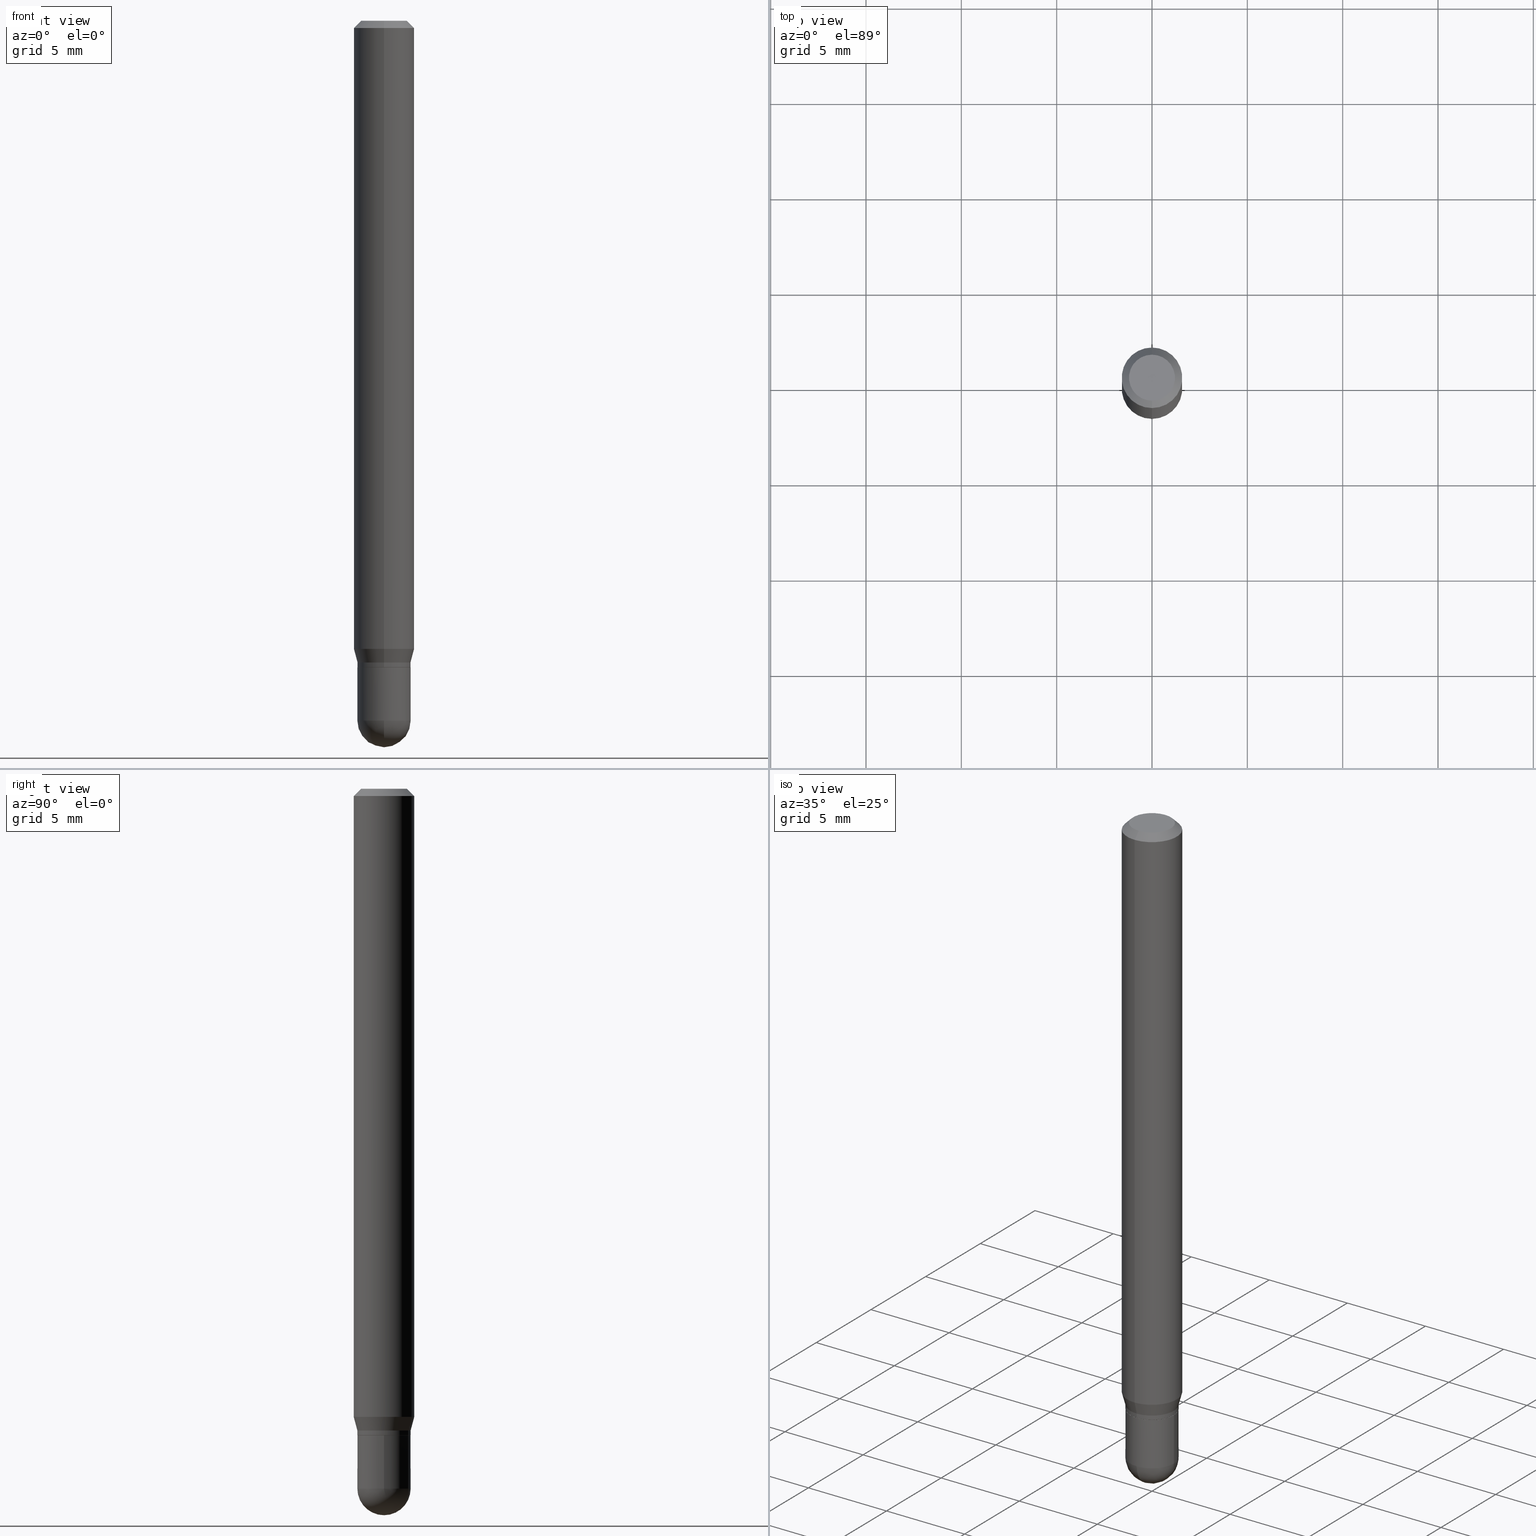
[diagram: canonical four-view strip — front | top / right | iso, engineering-drawing reading convention]
A machine part, canonical four-view strip (front | top / right | iso — engineering-drawing reading convention). The complete STEP part file that produces these views, byte-faithful:
ISO-10303-21;
HEADER;
FILE_DESCRIPTION (( 'STEP AP203' ),
    '1' );
FILE_NAME ('04385.STEP',
    '2024-03-08T19:03:46',
    ( '' ),
    ( '' ),
    'SwSTEP 2.0',
    'SolidWorks 2023',
    '' );
FILE_SCHEMA (( 'CONFIG_CONTROL_DESIGN' ));
ENDSEC;

DATA;
#1 = DIRECTION ( 'NONE',  ( 1.000000000000000000, -6.982962677686266711E-15, 4.876176775795935793E-29 ) ) ;
#2 = CIRCLE ( 'NONE', #295, 0.05500000000000000028 ) ;
#3 = AXIS2_PLACEMENT_3D ( 'NONE', #433, #318, #411 ) ;
#4 = CC_DESIGN_SECURITY_CLASSIFICATION ( #402, ( #281 ) ) ;
#5 = PRODUCT ( '04385', '04385', '', ( #43 ) ) ;
#6 = ADVANCED_FACE ( 'NONE', ( #495 ), #93, .T. ) ;
#7 = PERSON_AND_ORGANIZATION ( #385, #209 ) ;
#8 = DIMENSIONAL_EXPONENTS ( 1.000000000000000000, 0.000000000000000000, 0.000000000000000000, 0.000000000000000000, 0.000000000000000000, 0.000000000000000000, 0.000000000000000000 ) ;
#9 = CALENDAR_DATE ( 2024, 8, 3 ) ;
#10 = ORIENTED_EDGE ( 'NONE', *, *, #110, .T. ) ;
#11 = CC_DESIGN_PERSON_AND_ORGANIZATION_ASSIGNMENT ( #7, #279, ( #94 ) ) ;
#12 = DATE_TIME_ROLE ( 'creation_date' ) ;
#13 = VERTEX_POINT ( 'NONE', #342 ) ;
#14 = ORIENTED_EDGE ( 'NONE', *, *, #130, .T. ) ;
#15 = VERTEX_POINT ( 'NONE', #66 ) ;
#16 = APPROVAL_DATE_TIME ( #251, #335 ) ;
#17 = EDGE_LOOP ( 'NONE', ( #162, #25, #46, #245 ) ) ;
#18 = CIRCLE ( 'NONE', #486, 0.06250000000000000000 ) ;
#19 = EDGE_LOOP ( 'NONE', ( #160, #363, #104, #202 ) ) ;
#20 = EDGE_CURVE ( 'NONE', #286, #442, #2, .T. ) ;
#21 = VECTOR ( 'NONE', #205, 39.37007874015748143 ) ;
#22 = EDGE_CURVE ( 'NONE', #15, #128, #217, .T. ) ;
#23 = ORIENTED_EDGE ( 'NONE', *, *, #212, .F. ) ;
#24 = FACE_OUTER_BOUND ( 'NONE', #435, .T. ) ;
#25 = ORIENTED_EDGE ( 'NONE', *, *, #453, .T. ) ;
#26 = MANIFOLD_SOLID_BREP ( 'Body-Move/Copy2[1]', #311 ) ;
#27 = DIRECTION ( 'NONE',  ( -6.982962677686265922E-15, -1.000000000000000000, 5.012565125989473962E-15 ) ) ;
#28 = ORIENTED_EDGE ( 'NONE', *, *, #399, .T. ) ;
#29 = CIRCLE ( 'NONE', #340, 0.05500000000000020151 ) ;
#30 = LOCAL_TIME ( 14, 3, 46.00000000000000000, #358 ) ;
#31 = PLANE ( 'NONE',  #235 ) ;
#32 = EDGE_CURVE ( 'NONE', #262, #215, #29, .T. ) ;
#33 = ORIENTED_EDGE ( 'NONE', *, *, #190, .F. ) ;
#34 = CARTESIAN_POINT ( 'NONE',  ( 0.05500000000000000028, -3.840629472727446888E-16, 2.681897226687764826E-30 ) ) ;
#35 = DIRECTION ( 'NONE',  ( -2.445595275774768217E-29, 3.491300227192590875E-15, 1.000000000000000000 ) ) ;
#36 = CARTESIAN_POINT ( 'NONE',  ( -0.05500000000000000028, -4.462360556323917743E-15, -1.445000000000000062 ) ) ;
#37 = DIRECTION ( 'NONE',  ( -6.982962677686266711E-15, -1.000000000000000000, 3.491300227192590875E-15 ) ) ;
#38 = AXIS2_PLACEMENT_3D ( 'NONE', #421, #425, #305 ) ;
#39 = AXIS2_PLACEMENT_3D ( 'NONE', #418, #345, #68 ) ;
#40 = ADVANCED_FACE ( 'NONE', ( #451 ), #419, .T. ) ;
#41 = DIRECTION ( 'NONE',  ( -6.982962677686265922E-15, -1.000000000000000000, 3.483106191921935554E-15 ) ) ;
#42 = DATE_TIME_ROLE ( 'classification_date' ) ;
#43 = MECHANICAL_CONTEXT ( 'NONE', #294, 'mechanical' ) ;
#44 = DIRECTION ( 'NONE',  ( -6.982962677686265922E-15, -1.000000000000000000, 4.370956789862821150E-15 ) ) ;
#45 =( LENGTH_UNIT ( ) NAMED_UNIT ( * ) SI_UNIT ( $, .METRE. ) );
#46 = ORIENTED_EDGE ( 'NONE', *, *, #420, .F. ) ;
#47 = ORIENTED_EDGE ( 'NONE', *, *, #429, .F. ) ;
#48 = VERTEX_POINT ( 'NONE', #255 ) ;
#49 = APPROVAL ( #431, 'UNSPECIFIED' ) ;
#50 = VECTOR ( 'NONE', #249, 39.37007874015748143 ) ;
#51 = ORIENTED_EDGE ( 'NONE', *, *, #259, .T. ) ;
#52 = LINE ( 'NONE', #201, #50 ) ;
#53 = EDGE_LOOP ( 'NONE', ( #408, #439, #338, #135 ) ) ;
#54 = CARTESIAN_POINT ( 'NONE',  ( 3.907985046680888280E-16, 0.05499999999999557326, -1.325000000000000400 ) ) ;
#55 = CARTESIAN_POINT ( 'NONE',  ( 1.602081019360384933E-45, -2.287110169977683419E-31, -6.550883685579755119E-17 ) ) ;
#56 = EDGE_CURVE ( 'NONE', #241, #252, #207, .T. ) ;
#57 = AXIS2_PLACEMENT_3D ( 'NONE', #386, #303, #44 ) ;
#58 = ORIENTED_EDGE ( 'NONE', *, *, #429, .T. ) ;
#59 = LINE ( 'NONE', #372, #348 ) ;
#60 = DIRECTION ( 'NONE',  ( 1.000000000000000000, -6.982962677686266711E-15, 4.883557194083112340E-29 ) ) ;
#61 = CARTESIAN_POINT ( 'NONE',  ( 3.263646895521428124E-29, -4.659140153188512853E-15, -1.334500000000000242 ) ) ;
#62 = DIRECTION ( 'NONE',  ( -2.445595275774768217E-29, 3.491300227192590875E-15, 1.000000000000000000 ) ) ;
#63 = DIRECTION ( 'NONE',  ( -2.445468806185136877E-29, 3.491481338843145188E-15, 1.000000000000000000 ) ) ;
#64 = ORIENTED_EDGE ( 'NONE', *, *, #153, .T. ) ;
#65 = FACE_OUTER_BOUND ( 'NONE', #19, .T. ) ;
#66 = CARTESIAN_POINT ( 'NONE',  ( 3.840629472727447874E-16, 0.04749999999999999362, -2.313455976474456035E-16 ) ) ;
#67 = AXIS2_PLACEMENT_3D ( 'NONE', #288, #396, #333 ) ;
#68 = DIRECTION ( 'NONE',  ( -6.982962677686265922E-15, -1.000000000000000000, 4.966996352116824143E-15 ) ) ;
#69 = DIRECTION ( 'NONE',  ( -2.445595275774768217E-29, 3.491300227192590875E-15, 1.000000000000000000 ) ) ;
#70 = DIRECTION ( 'NONE',  ( -2.445595275774768217E-29, 3.491300227192590875E-15, 1.000000000000000000 ) ) ;
#71 = DIRECTION ( 'NONE',  ( -6.982962677686265922E-15, -1.000000000000000000, 4.966996352116824143E-15 ) ) ;
#72 = EDGE_CURVE ( 'NONE', #128, #15, #297, .T. ) ;
#73 = DIRECTION ( 'NONE',  ( -2.445595275774768217E-29, 3.491300227192590875E-15, 1.000000000000000000 ) ) ;
#74 = DIRECTION ( 'NONE',  ( -6.982962677686265922E-15, -1.000000000000000000, 3.491300227192590875E-15 ) ) ;
#75 = EDGE_CURVE ( 'NONE', #362, #166, #18, .T. ) ;
#76 = CARTESIAN_POINT ( 'NONE',  ( 4.440892098500945650E-16, 0.06249999999999995143, -0.01500000000000028394 ) ) ;
#77 = CALENDAR_DATE ( 2024, 8, 3 ) ;
#78 = CC_DESIGN_DATE_AND_TIME_ASSIGNMENT ( #194, #12, ( #94 ) ) ;
#79 = CARTESIAN_POINT ( 'NONE',  ( 3.668392913662168686E-31, -5.236950340788909313E-17, -0.01500000000000006710 ) ) ;
#80 = AXIS2_PLACEMENT_3D ( 'NONE', #422, #173, #27 ) ;
#81 = AXIS2_PLACEMENT_3D ( 'NONE', #79, #227, #119 ) ;
#82 = APPROVAL_DATE_TIME ( #438, #306 ) ;
#83 = ORIENTED_EDGE ( 'NONE', *, *, #399, .F. ) ;
#84 = DATE_AND_TIME ( #440, #480 ) ;
#85 = VERTEX_POINT ( 'NONE', #346 ) ;
#86 = ORIENTED_EDGE ( 'NONE', *, *, #20, .T. ) ;
#87 = LINE ( 'NONE', #246, #389 ) ;
#88 = CLOSED_SHELL ( 'NONE', ( #492, #40, #500, #6, #185, #367, #109, #291, #376, #331, #325, #174 ) ) ;
#89 = VECTOR ( 'NONE', #266, 39.37007874015748143 ) ;
#90 = CIRCLE ( 'NONE', #394, 0.05500000000000020151 ) ;
#91 = EDGE_LOOP ( 'NONE', ( #14, #172 ) ) ;
#92 = SPHERICAL_SURFACE ( 'NONE', #169, 0.05500000000000005579 ) ;
#93 = CYLINDRICAL_SURFACE ( 'NONE', #496, 0.06250000000000000000 ) ;
#94 = PRODUCT_DEFINITION ( 'UNKNOWN', '', #281, #432 ) ;
#95 = CARTESIAN_POINT ( 'NONE',  ( 0.000000000000000000, 0.000000000000000000, 0.000000000000000000 ) ) ;
#96 = CARTESIAN_POINT ( 'NONE',  ( 3.907985046680564354E-16, 0.05500000000000020151, -1.920215124955931874E-16 ) ) ;
#97 = AXIS2_PLACEMENT_3D ( 'NONE', #134, #447, #290 ) ;
#98 = COORDINATED_UNIVERSAL_TIME_OFFSET ( 5, 0, .BEHIND. ) ;
#99 =( GEOMETRIC_REPRESENTATION_CONTEXT ( 3 ) GLOBAL_UNCERTAINTY_ASSIGNED_CONTEXT ( ( #231 ) ) GLOBAL_UNIT_ASSIGNED_CONTEXT ( ( #512, #152, #232 ) ) REPRESENTATION_CONTEXT ( 'NONE', 'WORKASPACE' ) );
#100 = DIRECTION ( 'NONE',  ( 1.000000000000000000, -6.982962677686262766E-15, 0.000000000000000000 ) ) ;
#101 = DIRECTION ( 'NONE',  ( -1.000000000000000000, 6.982962677686265922E-15, -4.876176775795935793E-29 ) ) ;
#102 = ORIENTED_EDGE ( 'NONE', *, *, #75, .F. ) ;
#103 = LINE ( 'NONE', #302, #179 ) ;
#104 = ORIENTED_EDGE ( 'NONE', *, *, #443, .T. ) ;
#105 = DIRECTION ( 'NONE',  ( -6.982962677686265922E-15, -1.000000000000000000, 4.966996352116824143E-15 ) ) ;
#106 = LINE ( 'NONE', #350, #89 ) ;
#107 = FACE_OUTER_BOUND ( 'NONE', #197, .T. ) ;
#108 = CARTESIAN_POINT ( 'NONE',  ( -4.364351673553912750E-16, -0.06250000000000005551, -0.01499999999999984852 ) ) ;
#109 = ADVANCED_FACE ( 'NONE', ( #223 ), #390, .T. ) ;
#110 = EDGE_CURVE ( 'NONE', #166, #362, #347, .T. ) ;
#111 = CARTESIAN_POINT ( 'NONE',  ( 0.000000000000000000, 0.000000000000000000, 0.000000000000000000 ) ) ;
#112 = DIRECTION ( 'NONE',  ( -2.445468806185136597E-29, 3.491481338843145583E-15, 1.000000000000000000 ) ) ;
#113 = DIRECTION ( 'NONE',  ( -2.445468806185136597E-29, 3.491481338843145583E-15, 1.000000000000000000 ) ) ;
#114 = COORDINATED_UNIVERSAL_TIME_OFFSET ( 5, 0, .BEHIND. ) ;
#115 = CIRCLE ( 'NONE', #234, 0.05500000000000000028 ) ;
#116 = APPROVAL_PERSON_ORGANIZATION ( #326, #335, #370 ) ;
#117 = DIRECTION ( 'NONE',  ( 1.000000000000000000, -6.982962677686262766E-15, 0.000000000000000000 ) ) ;
#118 = APPLICATION_PROTOCOL_DEFINITION ( 'international standard', 'config_control_design', 1994, #294 ) ;
#119 = DIRECTION ( 'NONE',  ( 6.982962677686265922E-15, 1.000000000000000000, -3.483106191921935554E-15 ) ) ;
#120 = CARTESIAN_POINT ( 'NONE',  ( 4.174438572590915733E-16, 0.05499999999999557326, -1.325000000000000400 ) ) ;
#121 = COORDINATED_UNIVERSAL_TIME_OFFSET ( 5, 0, .BEHIND. ) ;
#122 = ORIENTED_EDGE ( 'NONE', *, *, #259, .F. ) ;
#123 = CIRCLE ( 'NONE', #218, 0.05500000000000000028 ) ;
#124 = EDGE_CURVE ( 'NONE', #252, #215, #191, .T. ) ;
#125 = EDGE_CURVE ( 'NONE', #442, #13, #115, .T. ) ;
#126 = PERSON_AND_ORGANIZATION ( #385, #209 ) ;
#127 = ORIENTED_EDGE ( 'NONE', *, *, #307, .F. ) ;
#128 = VERTEX_POINT ( 'NONE', #228 ) ;
#129 = EDGE_LOOP ( 'NONE', ( #122, #175, #280, #490 ) ) ;
#130 = EDGE_CURVE ( 'NONE', #182, #417, #132, .T. ) ;
#131 = FACE_OUTER_BOUND ( 'NONE', #327, .T. ) ;
#132 = CIRCLE ( 'NONE', #400, 0.05500000000000000028 ) ;
#133 = ORIENTED_EDGE ( 'NONE', *, *, #332, .F. ) ;
#134 = CARTESIAN_POINT ( 'NONE',  ( 3.668392913662168686E-31, -5.236950340788909313E-17, -0.01500000000000006710 ) ) ;
#135 = ORIENTED_EDGE ( 'NONE', *, *, #32, .F. ) ;
#136 = CALENDAR_DATE ( 2024, 8, 3 ) ;
#137 = DIRECTION ( 'NONE',  ( -6.982962677686265922E-15, -1.000000000000000000, 4.966996352116824143E-15 ) ) ;
#138 = DIRECTION ( 'NONE',  ( 6.982962677686265922E-15, 1.000000000000000000, -3.491300227192590875E-15 ) ) ;
#139 = AXIS2_PLACEMENT_3D ( 'NONE', #382, #505, #74 ) ;
#140 = ORIENTED_EDGE ( 'NONE', *, *, #230, .F. ) ;
#141 = DIRECTION ( 'NONE',  ( -2.445595275774768217E-29, 3.491300227192590875E-15, 1.000000000000000000 ) ) ;
#142 = DIRECTION ( 'NONE',  ( -2.445595275774767937E-29, 3.491300227192590875E-15, 1.000000000000000000 ) ) ;
#143 = DIRECTION ( 'NONE',  ( -6.982962677686265922E-15, -1.000000000000000000, 4.966996352116824143E-15 ) ) ;
#144 = DIRECTION ( 'NONE',  ( 1.000000000000000000, -6.982962677686262766E-15, 0.000000000000000000 ) ) ;
#145 = FACE_OUTER_BOUND ( 'NONE', #503, .T. ) ;
#146 = EDGE_CURVE ( 'NONE', #252, #241, #427, .T. ) ;
#147 = CARTESIAN_POINT ( 'NONE',  ( -0.05500000000000000028, -4.462360556323917743E-15, -1.335000000000000187 ) ) ;
#148 = DIRECTION ( 'NONE',  ( -2.445468806185136597E-29, 3.491481338843145583E-15, 1.000000000000000000 ) ) ;
#149 = CARTESIAN_POINT ( 'NONE',  ( 3.264700856257157760E-29, -4.661127587355599122E-15, -1.335000000000000187 ) ) ;
#150 = CARTESIAN_POINT ( 'NONE',  ( 0.05500000000000000028, -5.045190534628344107E-15, -1.335000000000000187 ) ) ;
#151 = CARTESIAN_POINT ( 'NONE',  ( -3.840629472727460200E-16, -0.05500000000000020151, 1.920215124955931874E-16 ) ) ;
#152 =( NAMED_UNIT ( * ) PLANE_ANGLE_UNIT ( ) SI_UNIT ( $, .RADIAN. ) );
#153 = EDGE_CURVE ( 'NONE', #13, #330, #198, .T. ) ;
#154 = VECTOR ( 'NONE', #424, 39.37007874015748143 ) ;
#155 = CC_DESIGN_APPROVAL ( #49, ( #94 ) ) ;
#156 = APPROVAL_STATUS ( 'not_yet_approved' ) ;
#157 = APPROVAL_ROLE ( '' ) ;
#158 = ORIENTED_EDGE ( 'NONE', *, *, #365, .T. ) ;
#159 = PERSON_AND_ORGANIZATION_ROLE ( 'design_supplier' ) ;
#160 = ORIENTED_EDGE ( 'NONE', *, *, #365, .F. ) ;
#161 = AXIS2_PLACEMENT_3D ( 'NONE', #384, #502, #144 ) ;
#162 = ORIENTED_EDGE ( 'NONE', *, *, #146, .T. ) ;
#163 = EDGE_CURVE ( 'NONE', #478, #368, #187, .T. ) ;
#164 = ORIENTED_EDGE ( 'NONE', *, *, #443, .F. ) ;
#165 = ADVANCED_FACE ( 'NONE', ( #188 ), #430, .T. ) ;
#166 = VERTEX_POINT ( 'NONE', #76 ) ;
#167 = DIRECTION ( 'NONE',  ( -4.937700262164674260E-15, -0.7071067811865632269, 0.7071067811865319186 ) ) ;
#168 = CARTESIAN_POINT ( 'NONE',  ( -3.840629472727128385E-16, -0.05500000000000477424, -1.334500000000000020 ) ) ;
#169 = AXIS2_PLACEMENT_3D ( 'NONE', #329, #60, #277 ) ;
#170 = AXIS2_PLACEMENT_3D ( 'NONE', #214, #339, #304 ) ;
#171 = EDGE_LOOP ( 'NONE', ( #127, #195, #28, #133 ) ) ;
#172 = ORIENTED_EDGE ( 'NONE', *, *, #212, .T. ) ;
#173 = DIRECTION ( 'NONE',  ( -2.445595275774768217E-29, 3.491300227192590875E-15, 1.000000000000000000 ) ) ;
#174 = ADVANCED_FACE ( 'NONE', ( #270 ), #271, .T. ) ;
#175 = ORIENTED_EDGE ( 'NONE', *, *, #261, .T. ) ;
#176 = CARTESIAN_POINT ( 'NONE',  ( 0.000000000000000000, 0.000000000000000000, 0.000000000000000000 ) ) ;
#177 = FACE_OUTER_BOUND ( 'NONE', #171, .T. ) ;
#178 = AXIS2_PLACEMENT_3D ( 'NONE', #354, #221, #117 ) ;
#179 = VECTOR ( 'NONE', #413, 39.37007874015748143 ) ;
#180 = DIRECTION ( 'NONE',  ( -2.445468806185136597E-29, 3.491481338843145583E-15, 1.000000000000000000 ) ) ;
#181 = CARTESIAN_POINT ( 'NONE',  ( 0.05500000000000000028, -5.237222008264716599E-15, -1.445000000000000062 ) ) ;
#182 = VERTEX_POINT ( 'NONE', #150 ) ;
#183 = DIRECTION ( 'NONE',  ( 1.000000000000000000, -6.982962677686266711E-15, 4.876176775795935793E-29 ) ) ;
#184 = DIRECTION ( 'NONE',  ( -6.982962677686265922E-15, -1.000000000000000000, 4.966996352116824143E-15 ) ) ;
#185 = ADVANCED_FACE ( 'NONE', ( #145 ), #497, .T. ) ;
#186 = DIRECTION ( 'NONE',  ( -2.445595275774768217E-29, 3.491300227192590875E-15, 1.000000000000000000 ) ) ;
#187 = CIRCLE ( 'NONE', #471, 0.05449999999999999983 ) ;
#188 = FACE_OUTER_BOUND ( 'NONE', #457, .T. ) ;
#189 = LENGTH_MEASURE_WITH_UNIT ( LENGTH_MEASURE( 0.02539999999999999897 ), #45 );
#190 = EDGE_CURVE ( 'NONE', #344, #85, #506, .T. ) ;
#191 = LINE ( 'NONE', #151, #154 ) ;
#192 = PERSON_AND_ORGANIZATION ( #385, #209 ) ;
#193 = DIRECTION ( 'NONE',  ( 1.000000000000000000, -6.982962677686262766E-15, 0.000000000000000000 ) ) ;
#194 = DATE_AND_TIME ( #9, #30 ) ;
#195 = ORIENTED_EDGE ( 'NONE', *, *, #32, .T. ) ;
#196 = ORIENTED_EDGE ( 'NONE', *, *, #72, .T. ) ;
#197 = EDGE_LOOP ( 'NONE', ( #484, #441, #482, #377 ) ) ;
#198 = CIRCLE ( 'NONE', #178, 0.05500000000000000028 ) ;
#199 = ORIENTED_EDGE ( 'NONE', *, *, #470, .F. ) ;
#200 = CARTESIAN_POINT ( 'NONE',  ( 4.364351673553919652E-16, 0.06249999999999995143, -0.01500000000000028394 ) ) ;
#201 = CARTESIAN_POINT ( 'NONE',  ( -0.05500000000000000028, 3.907985046680551042E-16, -2.705414299640198362E-30 ) ) ;
#202 = ORIENTED_EDGE ( 'NONE', *, *, #56, .F. ) ;
#203 = DIRECTION ( 'NONE',  ( 1.839019923739599526E-15, 0.2588190451025248473, 0.9659258262890670910 ) ) ;
#204 = ORIENTED_EDGE ( 'NONE', *, *, #317, .T. ) ;
#205 = DIRECTION ( 'NONE',  ( 4.937700262164548042E-15, 0.7071067811865451302, -0.7071067811865499042 ) ) ;
#206 = FACE_OUTER_BOUND ( 'NONE', #395, .T. ) ;
#207 = CIRCLE ( 'NONE', #436, 0.05500000000000020151 ) ;
#208 = AXIS2_PLACEMENT_3D ( 'NONE', #111, #148, #1 ) ;
#209 = ORGANIZATION ( 'UNSPECIFIED', 'UNSPECIFIED', '' ) ;
#210 = ORIENTED_EDGE ( 'NONE', *, *, #22, .F. ) ;
#211 = CC_DESIGN_PERSON_AND_ORGANIZATION_ASSIGNMENT ( #238, #159, ( #281 ) ) ;
#212 = EDGE_CURVE ( 'NONE', #417, #182, #123, .T. ) ;
#213 = ORIENTED_EDGE ( 'NONE', *, *, #190, .T. ) ;
#214 = CARTESIAN_POINT ( 'NONE',  ( 3.264869693159317002E-29, -4.660885803302110079E-15, -1.335000000000000409 ) ) ;
#215 = VERTEX_POINT ( 'NONE', #226 ) ;
#216 = CARTESIAN_POINT ( 'NONE',  ( -4.364351673553597205E-16, -0.06250000000000451028, -1.297009618943234077 ) ) ;
#217 = CIRCLE ( 'NONE', #287, 0.04749999999999999362 ) ;
#218 = AXIS2_PLACEMENT_3D ( 'NONE', #352, #349, #509 ) ;
#219 = DIRECTION ( 'NONE',  ( -6.982962677686265922E-15, -1.000000000000000000, 5.012565125989473962E-15 ) ) ;
#220 = DIRECTION ( 'NONE',  ( 2.445595275774767937E-29, -3.491300227192590875E-15, -1.000000000000000000 ) ) ;
#221 = DIRECTION ( 'NONE',  ( -2.445468806185136597E-29, 3.491481338843145583E-15, 1.000000000000000000 ) ) ;
#222 = LINE ( 'NONE', #34, #465 ) ;
#223 = FACE_OUTER_BOUND ( 'NONE', #248, .T. ) ;
#224 = CARTESIAN_POINT ( 'NONE',  ( 3.264869693159317002E-29, -4.660885803302110079E-15, -1.335000000000000409 ) ) ;
#225 = EDGE_CURVE ( 'NONE', #85, #166, #106, .T. ) ;
#226 = CARTESIAN_POINT ( 'NONE',  ( -3.840629472727136274E-16, -0.05500000000000482281, -1.324999999999999956 ) ) ;
#227 = DIRECTION ( 'NONE',  ( 2.445595275774768217E-29, -3.491300227192590875E-15, -1.000000000000000000 ) ) ;
#228 = CARTESIAN_POINT ( 'NONE',  ( -3.773273898774340269E-16, -0.04749999999999999362, 1.003279239358504888E-16 ) ) ;
#229 = CARTESIAN_POINT ( 'NONE',  ( 0.000000000000000000, 0.000000000000000000, 0.000000000000000000 ) ) ;
#230 = EDGE_CURVE ( 'NONE', #128, #362, #308, .T. ) ;
#231 = UNCERTAINTY_MEASURE_WITH_UNIT (LENGTH_MEASURE( 1.000000000000000082E-05 ), #512, 'distance_accuracy_value', 'NONE');
#232 =( NAMED_UNIT ( * ) SI_UNIT ( $, .STERADIAN. ) SOLID_ANGLE_UNIT ( ) );
#233 = ORIENTED_EDGE ( 'NONE', *, *, #332, .T. ) ;
#234 = AXIS2_PLACEMENT_3D ( 'NONE', #274, #112, #511 ) ;
#235 = AXIS2_PLACEMENT_3D ( 'NONE', #463, #461, #101 ) ;
#236 = ADVANCED_FACE ( 'NONE', ( #391 ), #92, .T. ) ;
#237 = DIRECTION ( 'NONE',  ( 7.105427357601000281E-15, 1.000000000000000000, 0.000000000000000000 ) ) ;
#238 = PERSON_AND_ORGANIZATION ( #385, #209 ) ;
#239 = ORIENTED_EDGE ( 'NONE', *, *, #225, .T. ) ;
#240 = ORIENTED_EDGE ( 'NONE', *, *, #383, .F. ) ;
#241 = VERTEX_POINT ( 'NONE', #489 ) ;
#242 = LINE ( 'NONE', #200, #21 ) ;
#243 = VECTOR ( 'NONE', #428, 39.37007874015748143 ) ;
#244 = APPROVAL_PERSON_ORGANIZATION ( #469, #306, #157 ) ;
#245 = ORIENTED_EDGE ( 'NONE', *, *, #124, .F. ) ;
#246 = CARTESIAN_POINT ( 'NONE',  ( -3.805714659338688453E-16, -0.05450000000000466277, -1.335000000000000187 ) ) ;
#247 = LINE ( 'NONE', #54, #264 ) ;
#248 = EDGE_LOOP ( 'NONE', ( #398, #233, #414, #328 ) ) ;
#249 = DIRECTION ( 'NONE',  ( -2.445468806185136877E-29, 3.491481338843145188E-15, 1.000000000000000000 ) ) ;
#250 = CC_DESIGN_PERSON_AND_ORGANIZATION_ASSIGNMENT ( #126, #282, ( #402 ) ) ;
#251 = DATE_AND_TIME ( #136, #455 ) ;
#252 = VERTEX_POINT ( 'NONE', #168 ) ;
#253 = AXIS2_PLACEMENT_3D ( 'NONE', #476, #450, #237 ) ;
#254 = AXIS2_PLACEMENT_3D ( 'NONE', #300, #70, #375 ) ;
#255 = CARTESIAN_POINT ( 'NONE',  ( 3.661148087391975640E-29, -5.247325344357685057E-15, -1.500000000000000222 ) ) ;
#256 = LINE ( 'NONE', #499, #356 ) ;
#257 = ORIENTED_EDGE ( 'NONE', *, *, #285, .F. ) ;
#258 = PRODUCT_DEFINITION_SHAPE ( 'NONE', 'NONE',  #94 ) ;
#259 = EDGE_CURVE ( 'NONE', #48, #286, #272, .T. ) ;
#260 = DIRECTION ( 'NONE',  ( -1.807323732225329350E-15, -0.2588190451025180194, 0.9659258262890689783 ) ) ;
#261 = EDGE_CURVE ( 'NONE', #48, #13, #409, .T. ) ;
#262 = VERTEX_POINT ( 'NONE', #120 ) ;
#263 = CARTESIAN_POINT ( 'NONE',  ( 0.000000000000000000, 0.000000000000000000, 0.000000000000000000 ) ) ;
#264 = VECTOR ( 'NONE', #203, 39.37007874015748143 ) ;
#265 = CIRCLE ( 'NONE', #170, 0.05449999999999999983 ) ;
#266 = DIRECTION ( 'NONE',  ( -2.445595275774768217E-29, 3.491300227192590875E-15, 1.000000000000000000 ) ) ;
#267 = CARTESIAN_POINT ( 'NONE',  ( 3.890221478286881815E-16, 0.05449999999999533690, -1.335000000000000631 ) ) ;
#268 = DIRECTION ( 'NONE',  ( -6.982962677686265922E-15, -1.000000000000000000, 3.483106191921935554E-15 ) ) ;
#269 = DIRECTION ( 'NONE',  ( -6.982962677686265922E-15, -1.000000000000000000, 3.491300227192590481E-15 ) ) ;
#270 = FACE_OUTER_BOUND ( 'NONE', #53, .T. ) ;
#271 = CYLINDRICAL_SURFACE ( 'NONE', #38, 0.05500000000000020151 ) ;
#272 = CIRCLE ( 'NONE', #3, 0.05500000000000005579 ) ;
#273 = DIRECTION ( 'NONE',  ( 1.000000000000000000, 0.000000000000000000, 0.000000000000000000 ) ) ;
#274 = CARTESIAN_POINT ( 'NONE',  ( 3.533702424937522517E-29, -5.045190534628345684E-15, -1.445000000000000062 ) ) ;
#275 = PERSON_AND_ORGANIZATION_ROLE ( 'design_owner' ) ;
#276 = ADVANCED_FACE ( 'NONE', ( #369 ), #278, .T. ) ;
#277 = DIRECTION ( 'NONE',  ( -6.982962677686266711E-15, -1.000000000000000000, 4.966996352116837554E-15 ) ) ;
#278 = SPHERICAL_SURFACE ( 'NONE', #67, 0.05500000000000005579 ) ;
#279 = PERSON_AND_ORGANIZATION_ROLE ( 'creator' ) ;
#280 = ORIENTED_EDGE ( 'NONE', *, *, #125, .F. ) ;
#281 = PRODUCT_DEFINITION_FORMATION_WITH_SPECIFIED_SOURCE ( 'ANY', '', #5, .NOT_KNOWN. ) ;
#282 = PERSON_AND_ORGANIZATION_ROLE ( 'classification_officer' ) ;
#283 = ORIENTED_EDGE ( 'NONE', *, *, #146, .F. ) ;
#284 = ORIENTED_EDGE ( 'NONE', *, *, #285, .T. ) ;
#285 = EDGE_CURVE ( 'NONE', #330, #417, #52, .T. ) ;
#286 = VERTEX_POINT ( 'NONE', #405 ) ;
#287 = AXIS2_PLACEMENT_3D ( 'NONE', #55, #334, #412 ) ;
#288 = CARTESIAN_POINT ( 'NONE',  ( 3.528999010347036160E-29, -5.051926092023656149E-15, -1.445000000000000062 ) ) ;
#289 = ORIENTED_EDGE ( 'NONE', *, *, #125, .T. ) ;
#290 = DIRECTION ( 'NONE',  ( 6.982962677686265922E-15, 1.000000000000000000, -3.483106191921935554E-15 ) ) ;
#291 = ADVANCED_FACE ( 'NONE', ( #131 ), #437, .T. ) ;
#292 = CARTESIAN_POINT ( 'NONE',  ( 3.240413740401568575E-29, -4.625972801030184497E-15, -1.325000000000000178 ) ) ;
#293 = CARTESIAN_POINT ( 'NONE',  ( 3.264869693159317002E-29, -4.660885803302110079E-15, -1.335000000000000409 ) ) ;
#294 = APPLICATION_CONTEXT ( 'configuration controlled 3d designs of mechanical parts and assemblies' ) ;
#295 = AXIS2_PLACEMENT_3D ( 'NONE', #452, #180, #100 ) ;
#296 = PLANE ( 'NONE',  #341 ) ;
#297 = CIRCLE ( 'NONE', #361, 0.04749999999999999362 ) ;
#298 = CIRCLE ( 'NONE', #254, 0.06250000000000000000 ) ;
#299 = ORIENTED_EDGE ( 'NONE', *, *, #163, .F. ) ;
#300 = CARTESIAN_POINT ( 'NONE',  ( 3.171960596722006873E-29, -4.528249977287490116E-15, -1.297009618943234521 ) ) ;
#301 = CARTESIAN_POINT ( 'NONE',  ( 1.602081019360384933E-45, -2.287110169977683419E-31, -6.550883685579755119E-17 ) ) ;
#302 = CARTESIAN_POINT ( 'NONE',  ( 3.872457909892871899E-16, 0.05449999999999533690, -1.335000000000000631 ) ) ;
#303 = DIRECTION ( 'NONE',  ( -2.445595275774768217E-29, 3.491300227192590875E-15, 1.000000000000000000 ) ) ;
#304 = DIRECTION ( 'NONE',  ( -6.982962677686265922E-15, -1.000000000000000000, 5.012565125989473962E-15 ) ) ;
#305 = DIRECTION ( 'NONE',  ( -6.982962677686265922E-15, -1.000000000000000000, 3.491300227192590481E-15 ) ) ;
#306 = APPROVAL ( #156, 'UNSPECIFIED' ) ;
#307 = EDGE_CURVE ( 'NONE', #262, #85, #247, .T. ) ;
#308 = LINE ( 'NONE', #309, #243 ) ;
#309 = CARTESIAN_POINT ( 'NONE',  ( -4.287811248607203282E-16, -0.06250000000000005551, -0.01499999999999984852 ) ) ;
#310 = APPLICATION_PROTOCOL_DEFINITION ( 'international standard', 'config_control_design', 1994, #323 ) ;
#311 = CLOSED_SHELL ( 'NONE', ( #165, #276, #423, #236, #315 ) ) ;
#312 = CARTESIAN_POINT ( 'NONE',  ( 3.263646895521428124E-29, -4.659140153188512853E-15, -1.334500000000000242 ) ) ;
#313 = AXIS2_PLACEMENT_3D ( 'NONE', #392, #73, #71 ) ;
#314 = APPROVAL_PERSON_ORGANIZATION ( #477, #49, #481 ) ;
#315 = ADVANCED_FACE ( 'NONE', ( #206 ), #373, .T. ) ;
#316 = PERSON_AND_ORGANIZATION ( #385, #209 ) ;
#317 = EDGE_CURVE ( 'NONE', #330, #286, #393, .T. ) ;
#318 = DIRECTION ( 'NONE',  ( -1.000000000000000000, 6.982962677686265922E-15, -4.883557194083112340E-29 ) ) ;
#319 = EDGE_LOOP ( 'NONE', ( #459, #51, #371, #374 ) ) ;
#320 = SECURITY_CLASSIFICATION_LEVEL ( 'unclassified' ) ;
#321 = AXIS2_PLACEMENT_3D ( 'NONE', #293, #380, #219 ) ;
#322 = AXIS2_PLACEMENT_3D ( 'NONE', #229, #434, #273 ) ;
#323 = APPLICATION_CONTEXT ( 'configuration controlled 3d designs of mechanical parts and assemblies' ) ;
#324 = CC_DESIGN_PERSON_AND_ORGANIZATION_ASSIGNMENT ( #316, #475, ( #281 ) ) ;
#325 = ADVANCED_FACE ( 'NONE', ( #65 ), #454, .T. ) ;
#326 = PERSON_AND_ORGANIZATION ( #385, #209 ) ;
#327 = EDGE_LOOP ( 'NONE', ( #140, #210, #359, #10 ) ) ;
#328 = ORIENTED_EDGE ( 'NONE', *, *, #110, .F. ) ;
#329 = CARTESIAN_POINT ( 'NONE',  ( 3.528999010347036160E-29, -5.051926092023656149E-15, -1.445000000000000062 ) ) ;
#330 = VERTEX_POINT ( 'NONE', #36 ) ;
#331 = ADVANCED_FACE ( 'NONE', ( #24 ), #494, .F. ) ;
#332 = EDGE_CURVE ( 'NONE', #85, #344, #298, .T. ) ;
#333 = DIRECTION ( 'NONE',  ( -6.982962677686266711E-15, -1.000000000000000000, 4.966996352116837554E-15 ) ) ;
#334 = DIRECTION ( 'NONE',  ( -2.445595275774768217E-29, 3.491300227192590875E-15, 1.000000000000000000 ) ) ;
#335 = APPROVAL ( #483, 'UNSPECIFIED' ) ;
#336 = DIRECTION ( 'NONE',  ( -2.445595275774768217E-29, 3.491300227192590875E-15, 1.000000000000000000 ) ) ;
#337 = DIRECTION ( 'NONE',  ( -6.982962677686265922E-15, -1.000000000000000000, 3.491300227192590875E-15 ) ) ;
#338 = ORIENTED_EDGE ( 'NONE', *, *, #124, .T. ) ;
#339 = DIRECTION ( 'NONE',  ( -2.445595275774768217E-29, 3.491300227192590875E-15, 1.000000000000000000 ) ) ;
#340 = AXIS2_PLACEMENT_3D ( 'NONE', #292, #493, #137 ) ;
#341 = AXIS2_PLACEMENT_3D ( 'NONE', #504, #220, #138 ) ;
#342 = CARTESIAN_POINT ( 'NONE',  ( 3.907985046680906029E-16, 0.05499999999999497652, -1.445000000000000284 ) ) ;
#343 = DIRECTION ( 'NONE',  ( -2.445468806185136597E-29, 3.491481338843145583E-15, 1.000000000000000000 ) ) ;
#344 = VERTEX_POINT ( 'NONE', #216 ) ;
#345 = DIRECTION ( 'NONE',  ( -2.445595275774768217E-29, 3.491300227192590875E-15, 1.000000000000000000 ) ) ;
#346 = CARTESIAN_POINT ( 'NONE',  ( 4.440892098500943678E-16, 0.06249999999999548972, -1.297009618943234743 ) ) ;
#347 = CIRCLE ( 'NONE', #479, 0.06250000000000000000 ) ;
#348 = VECTOR ( 'NONE', #62, 39.37007874015748143 ) ;
#349 = DIRECTION ( 'NONE',  ( -2.445468806185136597E-29, 3.491481338843145583E-15, 1.000000000000000000 ) ) ;
#350 = CARTESIAN_POINT ( 'NONE',  ( 4.440892098500625669E-16, 0.06250000000000000000, -2.182062641995369297E-16 ) ) ;
#351 = CALENDAR_DATE ( 2024, 8, 3 ) ;
#352 = CARTESIAN_POINT ( 'NONE',  ( 3.264700856257157760E-29, -4.661127587355599122E-15, -1.335000000000000187 ) ) ;
#353 = DATE_AND_TIME ( #351, #508 ) ;
#354 = CARTESIAN_POINT ( 'NONE',  ( 3.533702424937522517E-29, -5.045190534628345684E-15, -1.445000000000000062 ) ) ;
#355 = APPROVAL_DATE_TIME ( #353, #49 ) ;
#356 = VECTOR ( 'NONE', #260, 39.37007874015749564 ) ;
#357 = ORIENTED_EDGE ( 'NONE', *, *, #163, .T. ) ;
#358 = COORDINATED_UNIVERSAL_TIME_OFFSET ( 5, 0, .BEHIND. ) ;
#359 = ORIENTED_EDGE ( 'NONE', *, *, #460, .T. ) ;
#360 = CC_DESIGN_PERSON_AND_ORGANIZATION_ASSIGNMENT ( #192, #275, ( #5 ) ) ;
#361 = AXIS2_PLACEMENT_3D ( 'NONE', #301, #473, #37 ) ;
#362 = VERTEX_POINT ( 'NONE', #108 ) ;
#363 = ORIENTED_EDGE ( 'NONE', *, *, #383, .T. ) ;
#364 = MANIFOLD_SOLID_BREP ( 'Body-Move/Copy2[2]', #88 ) ;
#365 = EDGE_CURVE ( 'NONE', #368, #241, #103, .T. ) ;
#366 = EDGE_LOOP ( 'NONE', ( #213, #239, #102, #199 ) ) ;
#367 = ADVANCED_FACE ( 'NONE', ( #177 ), #488, .T. ) ;
#368 = VERTEX_POINT ( 'NONE', #267 ) ;
#369 = FACE_OUTER_BOUND ( 'NONE', #129, .T. ) ;
#370 = APPROVAL_ROLE ( '' ) ;
#371 = ORIENTED_EDGE ( 'NONE', *, *, #317, .F. ) ;
#372 = CARTESIAN_POINT ( 'NONE',  ( -4.364351673553916201E-16, -0.06250000000000000000, 2.182062641995369297E-16 ) ) ;
#373 = CYLINDRICAL_SURFACE ( 'NONE', #388, 0.05500000000000000028 ) ;
#374 = ORIENTED_EDGE ( 'NONE', *, *, #153, .F. ) ;
#375 = DIRECTION ( 'NONE',  ( -6.982962677686265922E-15, -1.000000000000000000, 4.370956789862821150E-15 ) ) ;
#376 = ADVANCED_FACE ( 'NONE', ( #416 ), #296, .F. ) ;
#377 = ORIENTED_EDGE ( 'NONE', *, *, #460, .F. ) ;
#378 = DIRECTION ( 'NONE',  ( -2.445595275774768217E-29, 3.491300227192590875E-15, 1.000000000000000000 ) ) ;
#379 = CONICAL_SURFACE ( 'NONE', #81, 0.06250000000000000000, 0.7853981633974483900 ) ;
#380 = DIRECTION ( 'NONE',  ( -2.445595275774768217E-29, 3.491300227192590875E-15, 1.000000000000000000 ) ) ;
#381 = CARTESIAN_POINT ( 'NONE',  ( 3.240413740401568575E-29, -4.625972801030184497E-15, -1.325000000000000178 ) ) ;
#382 = CARTESIAN_POINT ( 'NONE',  ( 0.000000000000000000, 0.000000000000000000, 0.000000000000000000 ) ) ;
#383 = EDGE_CURVE ( 'NONE', #368, #478, #265, .T. ) ;
#384 = CARTESIAN_POINT ( 'NONE',  ( 3.533702424937522517E-29, -5.045190534628345684E-15, -1.445000000000000062 ) ) ;
#385 = PERSON ( 'UNSPECIFIED', 'UNSPECIFIED', 'UNSPECIFIED', ('UNSPECIFIED'), ('UNSPECIFIED'), ('UNSPECIFIED') ) ;
#386 = CARTESIAN_POINT ( 'NONE',  ( 3.171960596722006873E-29, -4.528249977287490116E-15, -1.297009618943234521 ) ) ;
#387 = PRODUCT_RELATED_PRODUCT_CATEGORY ( 'detail', '', ( #5 ) ) ;
#388 = AXIS2_PLACEMENT_3D ( 'NONE', #263, #343, #183 ) ;
#389 = VECTOR ( 'NONE', #167, 39.37007874015748143 ) ;
#390 = CYLINDRICAL_SURFACE ( 'NONE', #139, 0.06250000000000000000 ) ;
#391 = FACE_OUTER_BOUND ( 'NONE', #319, .T. ) ;
#392 = CARTESIAN_POINT ( 'NONE',  ( 3.240413740401568575E-29, -4.625972801030184497E-15, -1.325000000000000178 ) ) ;
#393 = CIRCLE ( 'NONE', #161, 0.05500000000000000028 ) ;
#394 = AXIS2_PLACEMENT_3D ( 'NONE', #381, #378, #105 ) ;
#395 = EDGE_LOOP ( 'NONE', ( #257, #204, #86, #58, #23 ) ) ;
#396 = DIRECTION ( 'NONE',  ( 1.000000000000000000, -6.982962677686266711E-15, 4.883557194083112340E-29 ) ) ;
#397 = COORDINATED_UNIVERSAL_TIME_OFFSET ( 5, 0, .BEHIND. ) ;
#398 = ORIENTED_EDGE ( 'NONE', *, *, #225, .F. ) ;
#399 = EDGE_CURVE ( 'NONE', #215, #344, #256, .T. ) ;
#400 = AXIS2_PLACEMENT_3D ( 'NONE', #149, #113, #193 ) ;
#401 = ORIENTED_EDGE ( 'NONE', *, *, #22, .T. ) ;
#402 = SECURITY_CLASSIFICATION ( '', '', #320 ) ;
#403 = SHAPE_DEFINITION_REPRESENTATION ( #258, #474 ) ;
#404 = ORIENTED_EDGE ( 'NONE', *, *, #307, .T. ) ;
#405 = CARTESIAN_POINT ( 'NONE',  ( -3.840629472727094859E-16, -0.05500000000000507955, -1.444999999999999840 ) ) ;
#406 = DIRECTION ( 'NONE',  ( -6.982962677686265922E-15, -1.000000000000000000, 3.491300227192590875E-15 ) ) ;
#407 = DIRECTION ( 'NONE',  ( -2.445595275774768217E-29, 3.491300227192590875E-15, 1.000000000000000000 ) ) ;
#408 = ORIENTED_EDGE ( 'NONE', *, *, #453, .F. ) ;
#409 = CIRCLE ( 'NONE', #253, 0.05500000000000005579 ) ;
#410 = LOCAL_TIME ( 14, 3, 46.00000000000000000, #397 ) ;
#411 = DIRECTION ( 'NONE',  ( -6.982962677686265922E-15, -1.000000000000000000, 0.000000000000000000 ) ) ;
#412 = DIRECTION ( 'NONE',  ( -6.982962677686266711E-15, -1.000000000000000000, 3.491300227192590875E-15 ) ) ;
#413 = DIRECTION ( 'NONE',  ( 5.024295867788190974E-15, 0.7071067811865681119, 0.7071067811865270336 ) ) ;
#414 = ORIENTED_EDGE ( 'NONE', *, *, #470, .T. ) ;
#415 = CARTESIAN_POINT ( 'NONE',  ( -3.805714659338688453E-16, -0.05450000000000466277, -1.335000000000000187 ) ) ;
#416 = FACE_OUTER_BOUND ( 'NONE', #485, .T. ) ;
#417 = VERTEX_POINT ( 'NONE', #147 ) ;
#418 = CARTESIAN_POINT ( 'NONE',  ( 3.240413740401568575E-29, -4.625972801030184497E-15, -1.325000000000000178 ) ) ;
#419 = CONICAL_SURFACE ( 'NONE', #321, 0.05449999999999999983, 0.7853981633974739252 ) ;
#420 = EDGE_CURVE ( 'NONE', #215, #262, #90, .T. ) ;
#421 = CARTESIAN_POINT ( 'NONE',  ( 0.000000000000000000, 0.000000000000000000, 0.000000000000000000 ) ) ;
#422 = CARTESIAN_POINT ( 'NONE',  ( 3.264869693159317002E-29, -4.660885803302110079E-15, -1.335000000000000409 ) ) ;
#423 = ADVANCED_FACE ( 'NONE', ( #456 ), #31, .F. ) ;
#424 = DIRECTION ( 'NONE',  ( -2.445595275774768217E-29, 3.491300227192590875E-15, 1.000000000000000000 ) ) ;
#425 = DIRECTION ( 'NONE',  ( -2.445595275774768217E-29, 3.491300227192590875E-15, 1.000000000000000000 ) ) ;
#426 = FACE_OUTER_BOUND ( 'NONE', #17, .T. ) ;
#427 = CIRCLE ( 'NONE', #444, 0.05500000000000020151 ) ;
#428 = DIRECTION ( 'NONE',  ( -4.851104656540964275E-15, -0.7071067811865500152, -0.7071067811865450192 ) ) ;
#429 = EDGE_CURVE ( 'NONE', #442, #182, #222, .T. ) ;
#430 = CYLINDRICAL_SURFACE ( 'NONE', #208, 0.05500000000000000028 ) ;
#431 = APPROVAL_STATUS ( 'not_yet_approved' ) ;
#432 = DESIGN_CONTEXT ( 'detailed design', #323, 'design' ) ;
#433 = CARTESIAN_POINT ( 'NONE',  ( 3.528999010347036160E-29, -5.051926092023656149E-15, -1.445000000000000062 ) ) ;
#434 = DIRECTION ( 'NONE',  ( 0.000000000000000000, 0.000000000000000000, 1.000000000000000000 ) ) ;
#435 = EDGE_LOOP ( 'NONE', ( #299, #240 ) ) ;
#436 = AXIS2_PLACEMENT_3D ( 'NONE', #61, #501, #143 ) ;
#437 = CONICAL_SURFACE ( 'NONE', #97, 0.06250000000000000000, 0.7853981633974483900 ) ;
#438 = DATE_AND_TIME ( #77, #410 ) ;
#439 = ORIENTED_EDGE ( 'NONE', *, *, #56, .T. ) ;
#440 = CALENDAR_DATE ( 2024, 8, 3 ) ;
#441 = ORIENTED_EDGE ( 'NONE', *, *, #230, .T. ) ;
#442 = VERTEX_POINT ( 'NONE', #181 ) ;
#443 = EDGE_CURVE ( 'NONE', #478, #252, #87, .T. ) ;
#444 = AXIS2_PLACEMENT_3D ( 'NONE', #312, #69, #184 ) ;
#445 = ORIENTED_EDGE ( 'NONE', *, *, #420, .T. ) ;
#446 = VECTOR ( 'NONE', #407, 39.37007874015748143 ) ;
#447 = DIRECTION ( 'NONE',  ( 2.445595275774768217E-29, -3.491300227192590875E-15, -1.000000000000000000 ) ) ;
#448 = ORIENTED_EDGE ( 'NONE', *, *, #130, .F. ) ;
#449 = LINE ( 'NONE', #96, #446 ) ;
#450 = DIRECTION ( 'NONE',  ( 1.000000000000000000, -7.105427357601001070E-15, 4.926315508542082329E-29 ) ) ;
#451 = FACE_OUTER_BOUND ( 'NONE', #487, .T. ) ;
#452 = CARTESIAN_POINT ( 'NONE',  ( 3.533702424937522517E-29, -5.045190534628345684E-15, -1.445000000000000062 ) ) ;
#453 = EDGE_CURVE ( 'NONE', #241, #262, #449, .T. ) ;
#454 = CONICAL_SURFACE ( 'NONE', #80, 0.05449999999999999983, 0.7853981633974739252 ) ;
#455 = LOCAL_TIME ( 14, 3, 46.00000000000000000, #98 ) ;
#456 = FACE_OUTER_BOUND ( 'NONE', #91, .T. ) ;
#457 = EDGE_LOOP ( 'NONE', ( #64, #284, #448, #47, #289 ) ) ;
#458 = CARTESIAN_POINT ( 'NONE',  ( 3.264869693159317002E-29, -4.660885803302110079E-15, -1.335000000000000409 ) ) ;
#459 = ORIENTED_EDGE ( 'NONE', *, *, #261, .F. ) ;
#460 = EDGE_CURVE ( 'NONE', #15, #166, #242, .T. ) ;
#461 = DIRECTION ( 'NONE',  ( 2.438088387897960049E-29, -3.491481338843145188E-15, -1.000000000000000000 ) ) ;
#462 = CARTESIAN_POINT ( 'NONE',  ( 3.668392913662168686E-31, -5.236950340788909313E-17, -0.01500000000000006710 ) ) ;
#463 = CARTESIAN_POINT ( 'NONE',  ( 3.840629472727772786E-16, 0.05499999999999534428, -1.335000000000000409 ) ) ;
#464 = AXIS2_PLACEMENT_3D ( 'NONE', #458, #142, #337 ) ;
#465 = VECTOR ( 'NONE', #63, 39.37007874015748143 ) ;
#466 = DIRECTION ( 'NONE',  ( -2.445595275774768217E-29, 3.491300227192590875E-15, 1.000000000000000000 ) ) ;
#467 = DIRECTION ( 'NONE',  ( -6.982962677686265922E-15, -1.000000000000000000, 5.012565125989473962E-15 ) ) ;
#468 = CARTESIAN_POINT ( 'NONE',  ( 3.668392913662168686E-31, -5.236950340788909313E-17, -0.01500000000000006710 ) ) ;
#469 = PERSON_AND_ORGANIZATION ( #385, #209 ) ;
#470 = EDGE_CURVE ( 'NONE', #344, #362, #59, .T. ) ;
#471 = AXIS2_PLACEMENT_3D ( 'NONE', #224, #35, #467 ) ;
#472 = AXIS2_PLACEMENT_3D ( 'NONE', #176, #141, #269 ) ;
#473 = DIRECTION ( 'NONE',  ( -2.445595275774768217E-29, 3.491300227192590875E-15, 1.000000000000000000 ) ) ;
#474 = ADVANCED_BREP_SHAPE_REPRESENTATION ( '04385', ( #26, #364, #322 ), #99 ) ;
#475 = PERSON_AND_ORGANIZATION_ROLE ( 'creator' ) ;
#476 = CARTESIAN_POINT ( 'NONE',  ( 3.528999010347036160E-29, -5.051926092023656149E-15, -1.445000000000000062 ) ) ;
#477 = PERSON_AND_ORGANIZATION ( #385, #209 ) ;
#478 = VERTEX_POINT ( 'NONE', #415 ) ;
#479 = AXIS2_PLACEMENT_3D ( 'NONE', #468, #186, #41 ) ;
#480 = LOCAL_TIME ( 14, 3, 46.00000000000000000, #114 ) ;
#481 = APPROVAL_ROLE ( '' ) ;
#482 = ORIENTED_EDGE ( 'NONE', *, *, #75, .T. ) ;
#483 = APPROVAL_STATUS ( 'not_yet_approved' ) ;
#484 = ORIENTED_EDGE ( 'NONE', *, *, #72, .F. ) ;
#485 = EDGE_LOOP ( 'NONE', ( #401, #196 ) ) ;
#486 = AXIS2_PLACEMENT_3D ( 'NONE', #462, #466, #268 ) ;
#487 = EDGE_LOOP ( 'NONE', ( #357, #158, #283, #164 ) ) ;
#488 = CONICAL_SURFACE ( 'NONE', #39, 0.05500000000000020151, 0.2617993877991501850 ) ;
#489 = CARTESIAN_POINT ( 'NONE',  ( 3.907985046680896169E-16, 0.05499999999999562184, -1.334500000000000464 ) ) ;
#490 = ORIENTED_EDGE ( 'NONE', *, *, #20, .F. ) ;
#491 = CC_DESIGN_DATE_AND_TIME_ASSIGNMENT ( #84, #42, ( #402 ) ) ;
#492 = ADVANCED_FACE ( 'NONE', ( #426 ), #510, .T. ) ;
#493 = DIRECTION ( 'NONE',  ( -2.445595275774768217E-29, 3.491300227192590875E-15, 1.000000000000000000 ) ) ;
#494 = PLANE ( 'NONE',  #464 ) ;
#495 = FACE_OUTER_BOUND ( 'NONE', #366, .T. ) ;
#496 = AXIS2_PLACEMENT_3D ( 'NONE', #95, #336, #406 ) ;
#497 = CONICAL_SURFACE ( 'NONE', #313, 0.05500000000000020151, 0.2617993877991501850 ) ;
#498 = CC_DESIGN_APPROVAL ( #306, ( #281 ) ) ;
#499 = CARTESIAN_POINT ( 'NONE',  ( -3.840629472727136274E-16, -0.05500000000000482281, -1.324999999999999956 ) ) ;
#500 = ADVANCED_FACE ( 'NONE', ( #107 ), #379, .T. ) ;
#501 = DIRECTION ( 'NONE',  ( -2.445595275774768217E-29, 3.491300227192590875E-15, 1.000000000000000000 ) ) ;
#502 = DIRECTION ( 'NONE',  ( -2.445468806185136597E-29, 3.491481338843145583E-15, 1.000000000000000000 ) ) ;
#503 = EDGE_LOOP ( 'NONE', ( #445, #404, #33, #83 ) ) ;
#504 = CARTESIAN_POINT ( 'NONE',  ( 3.316907271900976096E-16, 0.04749999999999999362, -1.985911792195468464E-16 ) ) ;
#505 = DIRECTION ( 'NONE',  ( -2.445595275774768217E-29, 3.491300227192590875E-15, 1.000000000000000000 ) ) ;
#506 = CIRCLE ( 'NONE', #57, 0.06250000000000000000 ) ;
#507 = CC_DESIGN_APPROVAL ( #335, ( #402 ) ) ;
#508 = LOCAL_TIME ( 14, 3, 46.00000000000000000, #121 ) ;
#509 = DIRECTION ( 'NONE',  ( 1.000000000000000000, -6.982962677686262766E-15, 0.000000000000000000 ) ) ;
#510 = CYLINDRICAL_SURFACE ( 'NONE', #472, 0.05500000000000020151 ) ;
#511 = DIRECTION ( 'NONE',  ( 1.000000000000000000, -6.982962677686262766E-15, 0.000000000000000000 ) ) ;
#512 =( CONVERSION_BASED_UNIT ( 'INCH', #189 ) LENGTH_UNIT ( ) NAMED_UNIT ( #8 ) );
ENDSEC;
END-ISO-10303-21;
